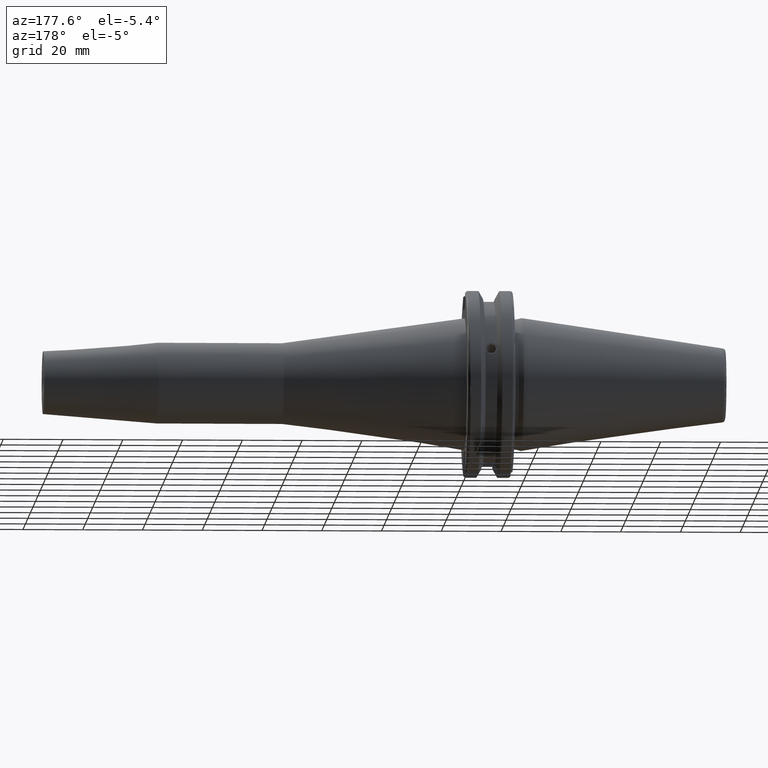
[diagram: clean part render]
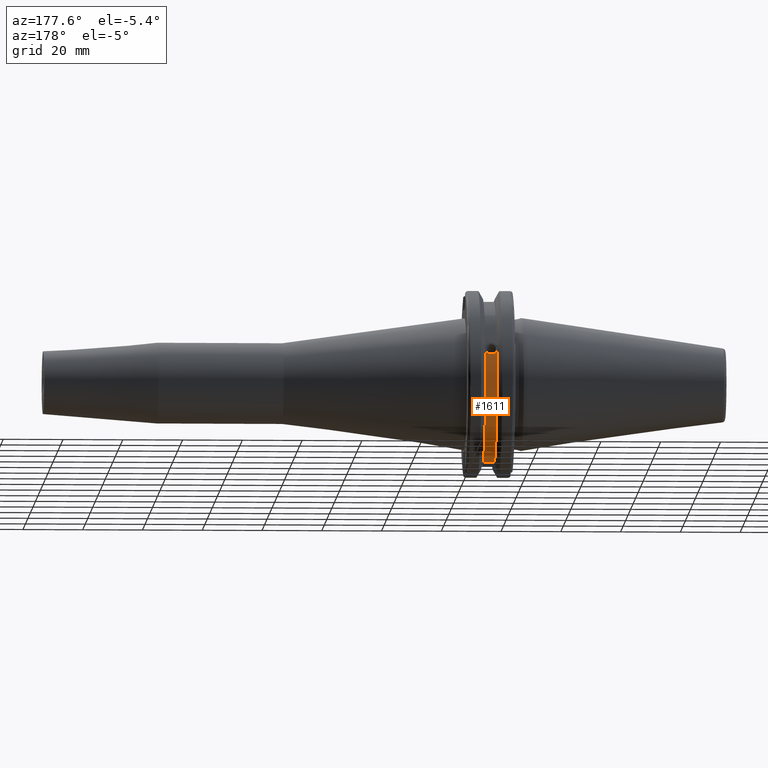
[diagram: same view with one face highlighted and labeled with its STEP entity id]
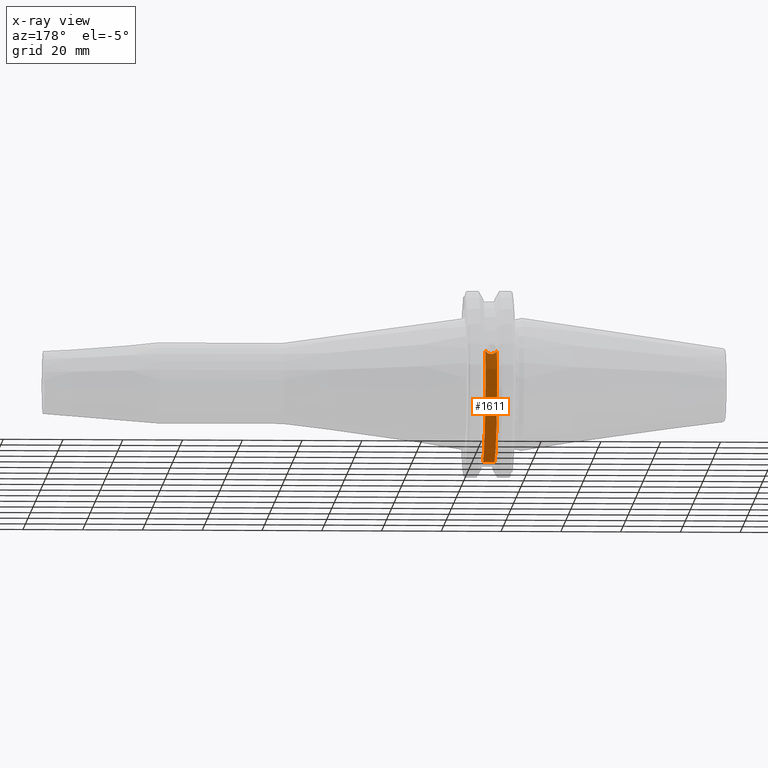
[diagram: x-ray of the same camera — body ghosted, the highlighted face saturated]
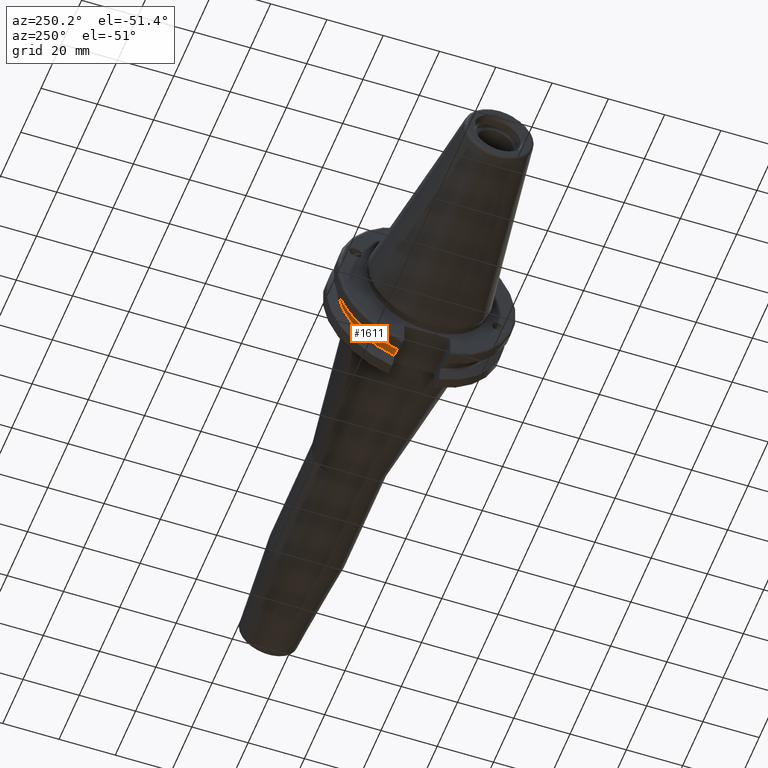
[diagram: same view with one face highlighted and labeled with its STEP entity id]
A machine part, auxiliary view. The second image highlights one B-rep face of the part: STEP entity #1611.
The next image is the same camera in x-ray: the body ghosted, the highlighted face saturated — about 0% of this face is hidden behind the body in this view.
A second angle (auxiliary view) of the same face is appended — the face is thin or edge-on in the first view.
In plain terms, the highlighted cylindrical surface (partial cylindrical patch) has radius 28.15 mm, axis along (1, 0, 0).
Its self-contained STEP definition (entity closure, byte-faithful):
#65=B_SPLINE_CURVE_WITH_KNOTS('',3,(#2709,#2710,#2711,#2712,#2713,#2714,
#2715,#2716,#2717,#2718,#2719,#2720,#2721,#2722),.UNSPECIFIED.,.F.,.F.,
(4,2,2,2,2,2,4),(0.401639126382403,0.474814416953736,0.553950208498303,
0.63308600004287,0.712221791587437,0.791357583132004,0.864532873703335),
 .UNSPECIFIED.);
#126=CYLINDRICAL_SURFACE('',#1785,28.15);
#195=FACE_OUTER_BOUND('',#299,.T.);
#299=EDGE_LOOP('',(#1245,#1246,#1247,#1248));
#397=CIRCLE('',#1784,28.15);
#398=CIRCLE('',#1786,28.15);
#474=LINE('',#2798,#577);
#577=VECTOR('',#2115,10.);
#711=VERTEX_POINT('',#2706);
#712=VERTEX_POINT('',#2708);
#724=VERTEX_POINT('',#2792);
#725=VERTEX_POINT('',#2796);
#903=EDGE_CURVE('',#712,#711,#65,.T.);
#917=EDGE_CURVE('',#724,#712,#397,.T.);
#919=EDGE_CURVE('',#725,#711,#398,.T.);
#920=EDGE_CURVE('',#725,#724,#474,.T.);
#1245=ORIENTED_EDGE('',*,*,#903,.T.);
#1246=ORIENTED_EDGE('',*,*,#919,.F.);
#1247=ORIENTED_EDGE('',*,*,#920,.T.);
#1248=ORIENTED_EDGE('',*,*,#917,.T.);
#1611=ADVANCED_FACE('',(#195),#126,.T.);
#1784=AXIS2_PLACEMENT_3D('',#2793,#2108,#2109);
#1785=AXIS2_PLACEMENT_3D('',#2795,#2111,#2112);
#1786=AXIS2_PLACEMENT_3D('',#2797,#2113,#2114);
#2108=DIRECTION('center_axis',(1.,0.,0.));
#2109=DIRECTION('ref_axis',(0.,0.,-1.));
#2111=DIRECTION('center_axis',(1.,0.,0.));
#2112=DIRECTION('ref_axis',(0.,1.,0.));
#2113=DIRECTION('center_axis',(1.,0.,0.));
#2114=DIRECTION('ref_axis',(0.,0.,-1.));
#2115=DIRECTION('',(-1.,0.,0.));
#2706=CARTESIAN_POINT('',(13.0491,26.734714844398,8.8134852464121));
#2708=CARTESIAN_POINT('',(9.2191,26.734714844398,8.81348524641212));
#2709=CARTESIAN_POINT('Ctrl Pts',(9.2191,26.734714844398,8.81348524641212));
#2710=CARTESIAN_POINT('Ctrl Pts',(9.32533057097183,26.8086519721597,8.58920529678291));
#2711=CARTESIAN_POINT('Ctrl Pts',(9.47682013770509,26.8729987454904,8.3841652999737));
#2712=CARTESIAN_POINT('Ctrl Pts',(9.83557062657411,26.9778908791383,8.04056861831091));
#2713=CARTESIAN_POINT('Ctrl Pts',(10.0716450112988,27.0233016799732,7.88512567185903));
#2714=CARTESIAN_POINT('Ctrl Pts',(10.5890125426388,27.0826966800569,7.6786444840004));
#2715=CARTESIAN_POINT('Ctrl Pts',(10.8703140281848,27.0968804077294,7.62768458768513));
#2716=CARTESIAN_POINT('Ctrl Pts',(11.3978859718152,27.0968804077294,7.62768458768513));
#2717=CARTESIAN_POINT('Ctrl Pts',(11.6791874573612,27.0826966800569,7.6786444840004));
#2718=CARTESIAN_POINT('Ctrl Pts',(12.1965549887012,27.0233016799732,7.88512567185903));
#2719=CARTESIAN_POINT('Ctrl Pts',(12.4326293734259,26.9778908791383,8.04056861831092));
#2720=CARTESIAN_POINT('Ctrl Pts',(12.7913798622949,26.8729987454904,8.38416529997369));
#2721=CARTESIAN_POINT('Ctrl Pts',(12.9428694290282,26.8086519721597,8.58920529678291));
#2722=CARTESIAN_POINT('Ctrl Pts',(13.0491,26.734714844398,8.81348524641211));
#2792=CARTESIAN_POINT('',(9.2191,8.19,-26.932255754021));
#2793=CARTESIAN_POINT('Origin',(9.2191,0.,0.));
#2795=CARTESIAN_POINT('Origin',(11.1341,0.,0.));
#2796=CARTESIAN_POINT('',(13.0491,8.19,-26.932255754021));
#2797=CARTESIAN_POINT('Origin',(13.0491,0.,0.));
#2798=CARTESIAN_POINT('',(11.1341,8.19,-26.932255754021));